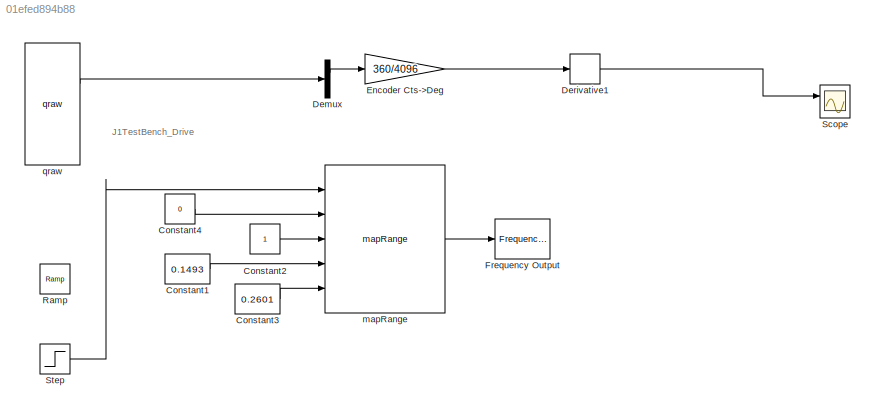
MODEL slx_01efed894b88
KIND model
CONFIG AbsTol = auto
CONFIG EnableMultiTasking = on
CONFIG FixedStep = 0.001
CONFIG MaxStep = auto
CONFIG MinStep = auto
CONFIG RelTol = 1e-3
CONFIG SampleTimeConstraint = Unconstrained
CONFIG Solver = ode5
CONFIG SolverName = ode5
CONFIG StartTime = 0.0
CONFIG StopTime = inf
BLOCK [Constant] Constant1
  Value = 0.1493
BLOCK [Constant] Constant2
BLOCK [Constant] Constant3
  Value = 0.2601
BLOCK [Constant] Constant4
  Value = 0
BLOCK [Demux] Demux
  DisplayOption = bar
  Outputs = 2
  Ports = [1, 2]
BLOCK [Derivative] Derivative1
BLOCK [Gain] Encoder Cts->Deg
  Gain = 360/4096
  OutDataTypeStr = Inherit: Inherit via internal rule
  ParamDataTypeStr = Inherit: Inherit via internal rule
  SaturateOnIntegerOverflow = off
BLOCK [Reference] Frequency Output  REF=sldrtlib/Frequency Output
  AttributesFormatString = Humusoft\nMF644 [auto]
  Ports = [1]
  SourceBlock = sldrtlib/Frequency Output
  SourceType = Simulink Desktop Real-Time Frequency Output
BLOCK [Reference] Ramp  REF=simulink/Sources/Ramp
  Ports = [0, 1]
  SourceBlock = simulink/Sources/Ramp
  SourceType = Ramp
BLOCK [Scope] Scope
  NumInputPorts = 2
  Ports = [2]
  ScopeSpecificationString = Simulink.scopes.TimeScopeBlockCfg('CurrentConfiguration', extmgr.ConfigurationSet(extmgr.Configuration('Core','General UI',true),extmgr.Configuration('Core','Source UI',true),extmgr.Configuration('Sources','WiredSimulink',true),extmgr.Configuration('Visuals','Time Domain',true,'SerializedDisplays',{struct('MinYLimReal','-3405.76172','MaxYLimReal','30651.85547','YLabelReal','','MinYLimMag','  0.000...<+1851ch>
BLOCK [Step] Step
  Before = -1
  SampleTime = 0
  Time = 2
BLOCK [Reference] mapRange   REF=dcpctrl/mapRange

  Ports = [5, 1]
  SourceBlock = dcpctrl/mapRange
  SourceType = SubSystem
BLOCK [Reference] qraw  REF=dcpctrl/qraw
  Ports = [0, 5]
  SourceBlock = dcpctrl/qraw
  SourceType = SubSystem
ANNOTATION (root): J1TestBench_Drive
LINE Constant1:1 -> mapRange :4
LINE Constant2:1 -> mapRange :3
LINE Constant3:1 -> mapRange :5
LINE Constant4:1 -> mapRange :2
LINE Demux:1 -> Encoder Cts->Deg:1
LINE Derivative1:1 -> Scope:1
LINE Encoder Cts->Deg:1 -> Derivative1:1
LINE Step:1 -> mapRange :1
LINE mapRange :1 -> Frequency Output:1
LINE qraw:2 -> Demux:1
